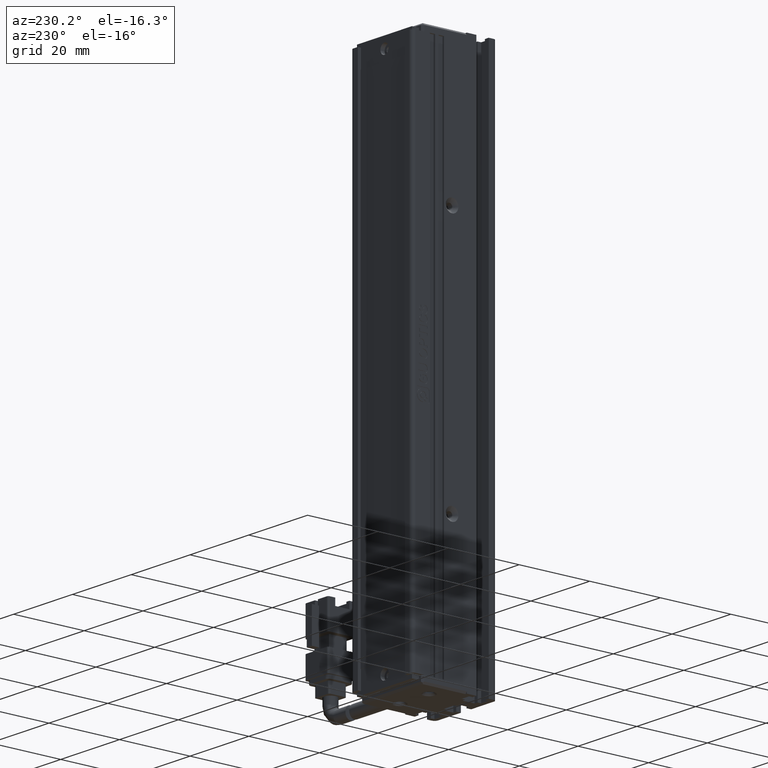
[diagram: clean part render]
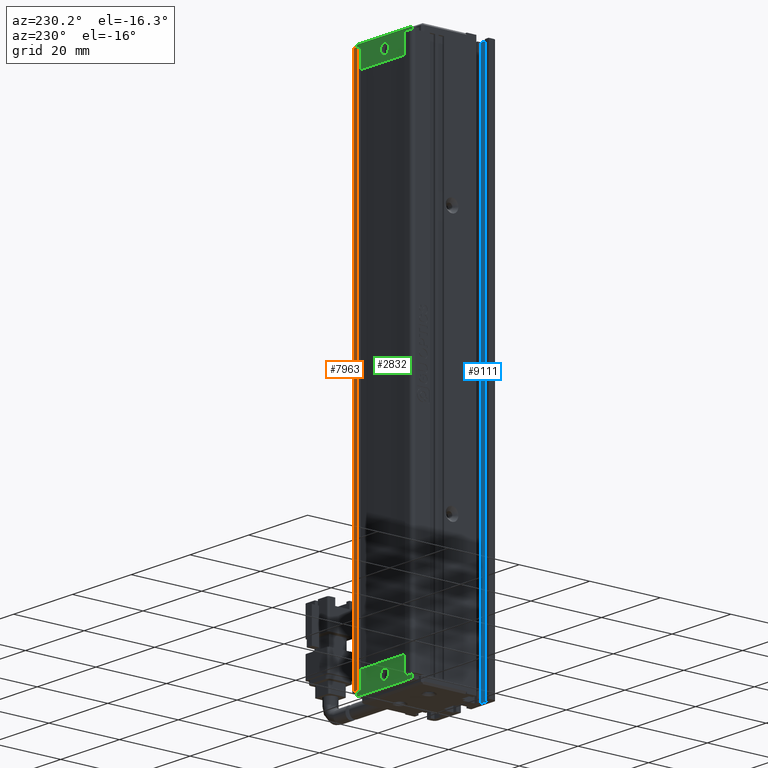
[diagram: same view with three faces highlighted in distinct colors, each labeled with its STEP entity id]
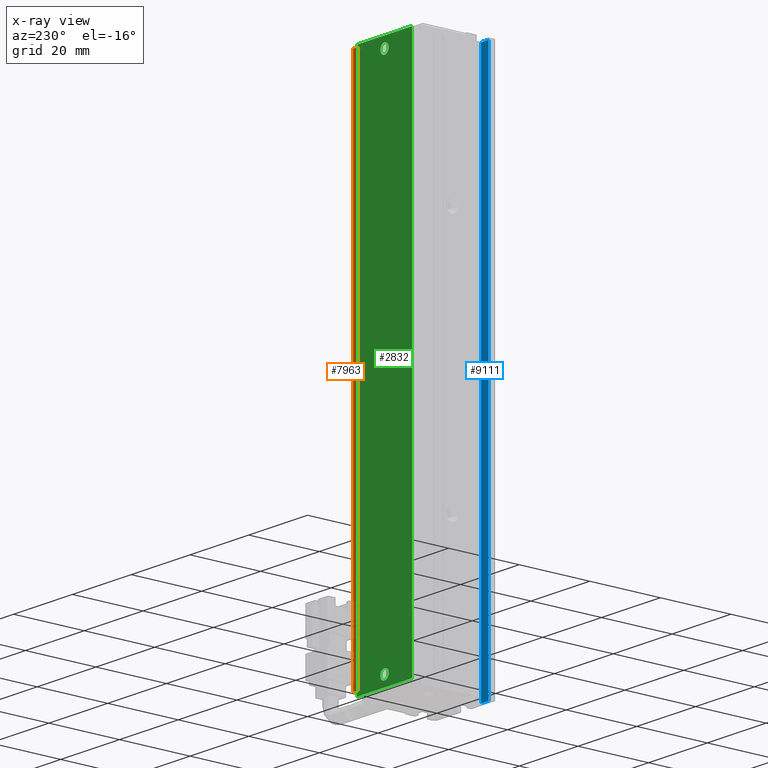
[diagram: x-ray of the same camera — body ghosted, the three highlighted faces saturated]
A machine part, auxiliary view with three faces highlighted in distinct colors.
The next image is the same camera in x-ray (body ghosted, the three faces saturated) — at least one of them is partly hidden behind the body in this view.
Their STEP definitions:

[orange] entity #7963 — the highlighted planar face has unit normal (0, -1, 0).
#74 = DIRECTION ( 'NONE',  ( 0.0000000000000000000, 0.0000000000000000000, 1.000000000000000000 ) ) ;
#478 = FACE_OUTER_BOUND ( 'NONE', #35091, .T. ) ;
#819 = EDGE_CURVE ( 'NONE', #3145, #14873, #11996, .T. ) ;
#3145 = VERTEX_POINT ( 'NONE', #5392 ) ;
#4713 = VERTEX_POINT ( 'NONE', #21657 ) ;
#5090 = LINE ( 'NONE', #12021, #7103 ) ;
#5392 = CARTESIAN_POINT ( 'NONE',  ( 48.92537974683541800, 34.99073232304837700, -42.00000000000000700 ) ) ;
#6806 = CARTESIAN_POINT ( 'NONE',  ( 48.92537974683541800, 34.99073232304837700, -188.0000000000000000 ) ) ;
#7103 = VECTOR ( 'NONE', #8604, 1000.000000000000000 ) ;
#7496 = CARTESIAN_POINT ( 'NONE',  ( 40.92537974683536100, 34.99073232304835600, -188.0000000000000000 ) ) ;
#7817 = LINE ( 'NONE', #29872, #41450 ) ;
#7963 = ADVANCED_FACE ( 'NONE', ( #478 ), #14207, .F. ) ;
#8604 = DIRECTION ( 'NONE',  ( -1.000000000000000000, -2.312964634635740700E-015, -0.0000000000000000000 ) ) ;
#9043 = ORIENTED_EDGE ( 'NONE', *, *, #31816, .F. ) ;
#10804 = AXIS2_PLACEMENT_3D ( 'NONE', #17516, #14347, #30811 ) ;
#10823 = CARTESIAN_POINT ( 'NONE',  ( 48.92537974683541800, 34.99073232304837700, -40.00000000000000700 ) ) ;
#11282 = ORIENTED_EDGE ( 'NONE', *, *, #41635, .F. ) ;
#11996 = LINE ( 'NONE', #10823, #24818 ) ;
#12021 = CARTESIAN_POINT ( 'NONE',  ( 40.92537974683536100, 34.99073232304835600, -42.00000000000000700 ) ) ;
#13885 = DIRECTION ( 'NONE',  ( 1.000000000000000000, 2.312964634635740700E-015, 0.0000000000000000000 ) ) ;
#14172 = VECTOR ( 'NONE', #13885, 1000.000000000000000 ) ;
#14207 = PLANE ( 'NONE',  #10804 ) ;
#14347 = DIRECTION ( 'NONE',  ( 2.312964634635740700E-015, -1.000000000000000000, 0.0000000000000000000 ) ) ;
#14873 = VERTEX_POINT ( 'NONE', #6806 ) ;
#17516 = CARTESIAN_POINT ( 'NONE',  ( 40.92537974683536100, 34.99073232304835600, -40.00000000000000700 ) ) ;
#21657 = CARTESIAN_POINT ( 'NONE',  ( 50.42537974683541800, 34.99073232304837700, -42.00000000000000700 ) ) ;
#24818 = VECTOR ( 'NONE', #26705, 1000.000000000000000 ) ;
#26705 = DIRECTION ( 'NONE',  ( -0.0000000000000000000, -0.0000000000000000000, -1.000000000000000000 ) ) ;
#27557 = EDGE_CURVE ( 'NONE', #14873, #29827, #38662, .T. ) ;
#29827 = VERTEX_POINT ( 'NONE', #40312 ) ;
#29872 = CARTESIAN_POINT ( 'NONE',  ( 50.42537974683541800, 34.99073232304837000, -40.00000000000000700 ) ) ;
#30811 = DIRECTION ( 'NONE',  ( 1.000000000000000000, 2.312964634635740700E-015, 0.0000000000000000000 ) ) ;
#31816 = EDGE_CURVE ( 'NONE', #29827, #4713, #7817, .T. ) ;
#35091 = EDGE_LOOP ( 'NONE', ( #11282, #9043, #38702, #38759 ) ) ;
#38662 = LINE ( 'NONE', #7496, #14172 ) ;
#38702 = ORIENTED_EDGE ( 'NONE', *, *, #27557, .F. ) ;
#38759 = ORIENTED_EDGE ( 'NONE', *, *, #819, .F. ) ;
#40312 = CARTESIAN_POINT ( 'NONE',  ( 50.42537974683541800, 34.99073232304837700, -188.0000000000000000 ) ) ;
#41450 = VECTOR ( 'NONE', #74, 1000.000000000000000 ) ;
#41635 = EDGE_CURVE ( 'NONE', #4713, #3145, #5090, .T. ) ;

[blue] entity #9111 — the highlighted planar face has unit normal (0, -1, 0).
#787 = VECTOR ( 'NONE', #39220, 1000.000000000000000 ) ;
#2565 = VECTOR ( 'NONE', #30243, 1000.000000000000000 ) ;
#4260 = DIRECTION ( 'NONE',  ( -0.0000000000000000000, 0.0000000000000000000, 1.000000000000000000 ) ) ;
#5901 = CARTESIAN_POINT ( 'NONE',  ( 31.72537974683542600, 12.29073232304837200, -190.0000000000000000 ) ) ;
#6029 = LINE ( 'NONE', #23812, #13070 ) ;
#6351 = CARTESIAN_POINT ( 'NONE',  ( 31.72537974683542600, 12.29073232304837200, -40.00000000000000700 ) ) ;
#8196 = VECTOR ( 'NONE', #32891, 1000.000000000000000 ) ;
#8749 = ORIENTED_EDGE ( 'NONE', *, *, #22265, .F. ) ;
#9111 = ADVANCED_FACE ( 'NONE', ( #15104 ), #15097, .F. ) ;
#13070 = VECTOR ( 'NONE', #4260, 1000.000000000000000 ) ;
#15097 = PLANE ( 'NONE',  #25424 ) ;
#15104 = FACE_OUTER_BOUND ( 'NONE', #31766, .T. ) ;
#15244 = CARTESIAN_POINT ( 'NONE',  ( 40.92537974683542500, 12.29073232304837200, -40.00000000000000700 ) ) ;
#16186 = ORIENTED_EDGE ( 'NONE', *, *, #20413, .F. ) ;
#18135 = DIRECTION ( 'NONE',  ( 0.0000000000000000000, -0.0000000000000000000, -1.000000000000000000 ) ) ;
#19904 = CARTESIAN_POINT ( 'NONE',  ( 31.72537974683542600, 12.29073232304837200, -40.00000000000000700 ) ) ;
#20065 = ORIENTED_EDGE ( 'NONE', *, *, #33590, .F. ) ;
#20413 = EDGE_CURVE ( 'NONE', #24879, #40140, #35176, .T. ) ;
#20972 = CARTESIAN_POINT ( 'NONE',  ( 34.22537974683542900, 12.29073232304837200, -190.0000000000000000 ) ) ;
#21589 = VERTEX_POINT ( 'NONE', #5901 ) ;
#22265 = EDGE_CURVE ( 'NONE', #40140, #21589, #27062, .T. ) ;
#23812 = CARTESIAN_POINT ( 'NONE',  ( 34.22537974683542900, 12.29073232304837200, -40.00000000000000700 ) ) ;
#24237 = VERTEX_POINT ( 'NONE', #20972 ) ;
#24879 = VERTEX_POINT ( 'NONE', #31892 ) ;
#25424 = AXIS2_PLACEMENT_3D ( 'NONE', #15244, #34525, #18135 ) ;
#26943 = CARTESIAN_POINT ( 'NONE',  ( 40.92537974683542500, 12.29073232304837200, -40.00000000000000700 ) ) ;
#27062 = LINE ( 'NONE', #19904, #8196 ) ;
#27460 = ORIENTED_EDGE ( 'NONE', *, *, #28077, .T. ) ;
#28077 = EDGE_CURVE ( 'NONE', #24237, #21589, #34993, .T. ) ;
#30243 = DIRECTION ( 'NONE',  ( -1.000000000000000000, -0.0000000000000000000, -0.0000000000000000000 ) ) ;
#31766 = EDGE_LOOP ( 'NONE', ( #8749, #16186, #20065, #27460 ) ) ;
#31892 = CARTESIAN_POINT ( 'NONE',  ( 34.22537974683542900, 12.29073232304837200, -40.00000000000000700 ) ) ;
#32891 = DIRECTION ( 'NONE',  ( 0.0000000000000000000, -0.0000000000000000000, -1.000000000000000000 ) ) ;
#33590 = EDGE_CURVE ( 'NONE', #24237, #24879, #6029, .T. ) ;
#34525 = DIRECTION ( 'NONE',  ( 0.0000000000000000000, -1.000000000000000000, 0.0000000000000000000 ) ) ;
#34993 = LINE ( 'NONE', #40058, #787 ) ;
#35176 = LINE ( 'NONE', #26943, #2565 ) ;
#39220 = DIRECTION ( 'NONE',  ( -1.000000000000000000, -0.0000000000000000000, -0.0000000000000000000 ) ) ;
#40058 = CARTESIAN_POINT ( 'NONE',  ( 40.92537974683542500, 12.29073232304837200, -190.0000000000000000 ) ) ;
#40140 = VERTEX_POINT ( 'NONE', #6351 ) ;

[green] entity #2832 — the highlighted planar face has unit normal (-0, 1, 0).
#590 = VERTEX_POINT ( 'NONE', #23150 ) ;
#2436 = AXIS2_PLACEMENT_3D ( 'NONE', #41500, #15425, #37994 ) ;
#2437 = ORIENTED_EDGE ( 'NONE', *, *, #21686, .T. ) ;
#2832 = ADVANCED_FACE ( 'NONE', ( #28331, #35883, #21714 ), #18027, .T. ) ;
#3343 = DIRECTION ( 'NONE',  ( 0.0000000000000000000, 0.0000000000000000000, 1.000000000000000000 ) ) ;
#3496 = AXIS2_PLACEMENT_3D ( 'NONE', #31805, #15068, #8413 ) ;
#5127 = EDGE_LOOP ( 'NONE', ( #12337, #37729 ) ) ;
#5510 = CARTESIAN_POINT ( 'NONE',  ( 50.27537974683542600, 34.09073232304837100, -41.00000000000000700 ) ) ;
#5545 = VECTOR ( 'NONE', #39362, 1000.000000000000000 ) ;
#6308 = LINE ( 'NONE', #16382, #39885 ) ;
#6810 = ORIENTED_EDGE ( 'NONE', *, *, #10991, .T. ) ;
#6869 = CIRCLE ( 'NONE', #38976, 1.399999999999998600 ) ;
#7399 = CARTESIAN_POINT ( 'NONE',  ( 31.57537974683540600, 34.09073232304837100, -189.0000000000000000 ) ) ;
#8413 = DIRECTION ( 'NONE',  ( 0.0000000000000000000, 0.0000000000000000000, 1.000000000000000000 ) ) ;
#8623 = EDGE_CURVE ( 'NONE', #590, #41612, #10592, .T. ) ;
#8771 = CARTESIAN_POINT ( 'NONE',  ( 40.92537974683541100, 34.09073232304837100, -186.0000000000000000 ) ) ;
#10300 = CARTESIAN_POINT ( 'NONE',  ( 31.57537974683542700, 34.09073232304837100, -41.00000000000000700 ) ) ;
#10592 = CIRCLE ( 'NONE', #28672, 1.400000000000012300 ) ;
#10991 = EDGE_CURVE ( 'NONE', #41612, #590, #15096, .T. ) ;
#11214 = ORIENTED_EDGE ( 'NONE', *, *, #8623, .T. ) ;
#11714 = VERTEX_POINT ( 'NONE', #22566 ) ;
#12286 = CARTESIAN_POINT ( 'NONE',  ( 40.92537974683541100, 34.09073232304837100, -184.5999999999999900 ) ) ;
#12337 = ORIENTED_EDGE ( 'NONE', *, *, #40111, .T. ) ;
#12669 = DIRECTION ( 'NONE',  ( 1.000000000000000000, 0.0000000000000000000, -1.548860246407863500E-017 ) ) ;
#13489 = DIRECTION ( 'NONE',  ( -1.326996481381872200E-016, -0.0000000000000000000, -1.000000000000000000 ) ) ;
#15068 = DIRECTION ( 'NONE',  ( -0.0000000000000000000, -1.000000000000000000, -0.0000000000000000000 ) ) ;
#15096 = CIRCLE ( 'NONE', #2436, 1.400000000000012300 ) ;
#15126 = DIRECTION ( 'NONE',  ( 1.548860246407863500E-017, 0.0000000000000000000, 1.000000000000000000 ) ) ;
#15239 = CARTESIAN_POINT ( 'NONE',  ( 31.57537974683542000, 34.09073232304837100, -41.00000000000000700 ) ) ;
#15425 = DIRECTION ( 'NONE',  ( -0.0000000000000000000, -1.000000000000000000, -0.0000000000000000000 ) ) ;
#16349 = EDGE_CURVE ( 'NONE', #26133, #21058, #40535, .T. ) ;
#16382 = CARTESIAN_POINT ( 'NONE',  ( 50.27537974683542600, 34.09073232304837100, -41.00000000000000700 ) ) ;
#17360 = DIRECTION ( 'NONE',  ( -1.000000000000000000, -0.0000000000000000000, 1.548860246407863500E-017 ) ) ;
#18027 = PLANE ( 'NONE',  #39610 ) ;
#18272 = LINE ( 'NONE', #10300, #5545 ) ;
#18491 = EDGE_LOOP ( 'NONE', ( #33905, #21792, #30020, #2437 ) ) ;
#19266 = CARTESIAN_POINT ( 'NONE',  ( 31.57537974683542700, 34.09073232304837100, -41.00000000000000700 ) ) ;
#21058 = VERTEX_POINT ( 'NONE', #32709 ) ;
#21443 = VERTEX_POINT ( 'NONE', #15239 ) ;
#21686 = EDGE_CURVE ( 'NONE', #27580, #32445, #6308, .T. ) ;
#21714 = FACE_BOUND ( 'NONE', #39035, .T. ) ;
#21790 = EDGE_CURVE ( 'NONE', #32445, #11714, #37346, .T. ) ;
#21792 = ORIENTED_EDGE ( 'NONE', *, *, #24984, .T. ) ;
#21925 = DIRECTION ( 'NONE',  ( -0.0000000000000000000, 1.000000000000000000, 0.0000000000000000000 ) ) ;
#22566 = CARTESIAN_POINT ( 'NONE',  ( 31.57537974683540600, 34.09073232304837100, -189.0000000000000000 ) ) ;
#23150 = CARTESIAN_POINT ( 'NONE',  ( 40.92537974683541100, 34.09073232304837100, -187.4000000000000100 ) ) ;
#24984 = EDGE_CURVE ( 'NONE', #11714, #21443, #18272, .T. ) ;
#25485 = DIRECTION ( 'NONE',  ( 0.0000000000000000000, 0.0000000000000000000, 1.000000000000000000 ) ) ;
#26133 = VERTEX_POINT ( 'NONE', #30772 ) ;
#27580 = VERTEX_POINT ( 'NONE', #40233 ) ;
#28331 = FACE_OUTER_BOUND ( 'NONE', #18491, .T. ) ;
#28672 = AXIS2_PLACEMENT_3D ( 'NONE', #8771, #35274, #25485 ) ;
#29206 = VECTOR ( 'NONE', #17360, 1000.000000000000000 ) ;
#30020 = ORIENTED_EDGE ( 'NONE', *, *, #30058, .T. ) ;
#30058 = EDGE_CURVE ( 'NONE', #21443, #27580, #37756, .T. ) ;
#30772 = CARTESIAN_POINT ( 'NONE',  ( 40.92537974683541800, 34.09073232304837100, -45.40000000000001300 ) ) ;
#31805 = CARTESIAN_POINT ( 'NONE',  ( 40.92537974683541800, 34.09073232304837100, -44.00000000000001400 ) ) ;
#32154 = CARTESIAN_POINT ( 'NONE',  ( 40.92537974683541800, 34.09073232304837100, -44.00000000000001400 ) ) ;
#32445 = VERTEX_POINT ( 'NONE', #41031 ) ;
#32709 = CARTESIAN_POINT ( 'NONE',  ( 40.92537974683541800, 34.09073232304837100, -42.60000000000001600 ) ) ;
#33905 = ORIENTED_EDGE ( 'NONE', *, *, #21790, .T. ) ;
#35261 = DIRECTION ( 'NONE',  ( -0.0000000000000000000, -1.000000000000000000, -0.0000000000000000000 ) ) ;
#35274 = DIRECTION ( 'NONE',  ( -0.0000000000000000000, -1.000000000000000000, -0.0000000000000000000 ) ) ;
#35883 = FACE_BOUND ( 'NONE', #5127, .T. ) ;
#37346 = LINE ( 'NONE', #7399, #29206 ) ;
#37729 = ORIENTED_EDGE ( 'NONE', *, *, #16349, .T. ) ;
#37756 = LINE ( 'NONE', #19266, #41801 ) ;
#37994 = DIRECTION ( 'NONE',  ( 0.0000000000000000000, 0.0000000000000000000, 1.000000000000000000 ) ) ;
#38976 = AXIS2_PLACEMENT_3D ( 'NONE', #32154, #35261, #3343 ) ;
#39035 = EDGE_LOOP ( 'NONE', ( #6810, #11214 ) ) ;
#39362 = DIRECTION ( 'NONE',  ( 1.379532823788139600E-016, -0.0000000000000000000, 1.000000000000000000 ) ) ;
#39610 = AXIS2_PLACEMENT_3D ( 'NONE', #5510, #21925, #15126 ) ;
#39885 = VECTOR ( 'NONE', #13489, 1000.000000000000000 ) ;
#40111 = EDGE_CURVE ( 'NONE', #21058, #26133, #6869, .T. ) ;
#40233 = CARTESIAN_POINT ( 'NONE',  ( 50.27537974683542600, 34.09073232304837100, -41.00000000000000700 ) ) ;
#40535 = CIRCLE ( 'NONE', #3496, 1.399999999999998600 ) ;
#41031 = CARTESIAN_POINT ( 'NONE',  ( 50.27537974683540500, 34.09073232304837100, -189.0000000000000000 ) ) ;
#41500 = CARTESIAN_POINT ( 'NONE',  ( 40.92537974683541100, 34.09073232304837100, -186.0000000000000000 ) ) ;
#41612 = VERTEX_POINT ( 'NONE', #12286 ) ;
#41801 = VECTOR ( 'NONE', #12669, 1000.000000000000000 ) ;